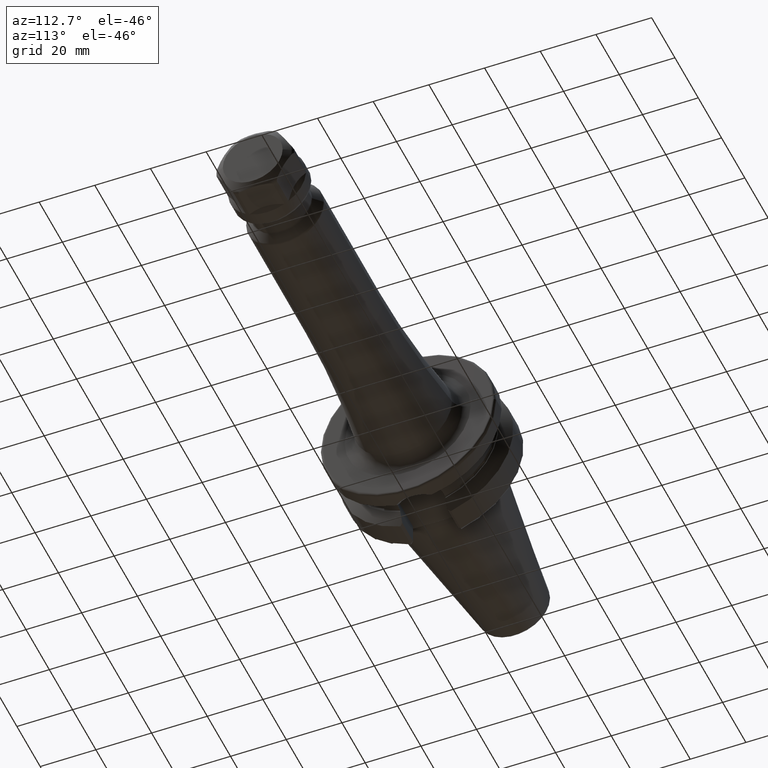
[diagram: clean part render]
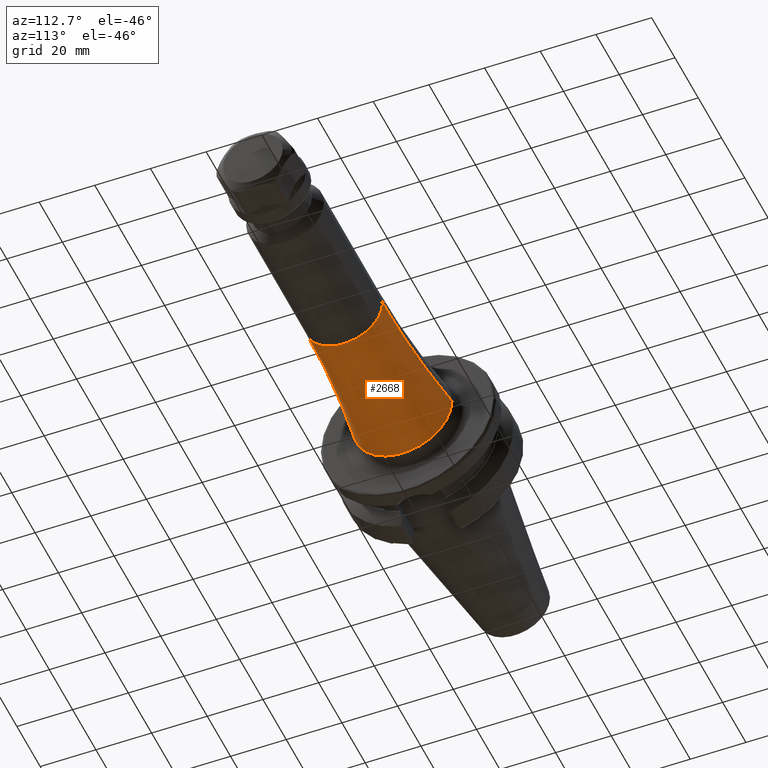
[diagram: same view with one face highlighted and labeled with its STEP entity id]
A machine part, auxiliary view. The second image highlights one B-rep face of the part: STEP entity #2668.
In plain terms, the highlighted toroidal blend (fillet) surface has major radius 364 mm and minor (blend) radius 350 mm.
Its self-contained STEP definition (entity closure, byte-faithful):
#861=CARTESIAN_POINT('',(3.127536231884E1,0.E0,0.E0));
#862=DIRECTION('',(1.E0,0.E0,0.E0));
#863=DIRECTION('',(0.E0,-1.E0,0.E0));
#864=AXIS2_PLACEMENT_3D('',#861,#862,#863);
#866=CARTESIAN_POINT('',(8.2E1,-3.64E2,-8.915428697793E-14));
#867=DIRECTION('',(0.E0,0.E0,1.E0));
#868=DIRECTION('',(0.E0,1.E0,0.E0));
#869=AXIS2_PLACEMENT_3D('',#866,#867,#868);
#871=CARTESIAN_POINT('',(8.2E1,3.64E2,4.457714348896E-14));
#872=DIRECTION('',(0.E0,0.E0,-1.E0));
#873=DIRECTION('',(0.E0,-1.E0,0.E0));
#874=AXIS2_PLACEMENT_3D('',#871,#872,#873);
#876=CARTESIAN_POINT('',(8.2E1,0.E0,0.E0));
#877=DIRECTION('',(1.E0,0.E0,0.E0));
#878=DIRECTION('',(0.E0,-1.E0,0.E0));
#879=AXIS2_PLACEMENT_3D('',#876,#877,#878);
#1501=CARTESIAN_POINT('',(8.2E1,1.4E1,0.E0));
#1502=CARTESIAN_POINT('',(8.2E1,-1.4E1,0.E0));
#1503=VERTEX_POINT('',#1501);
#1504=VERTEX_POINT('',#1502);
#1509=CARTESIAN_POINT('',(3.127536231884E1,-1.769520486699E1,0.E0));
#1510=CARTESIAN_POINT('',(3.127536231884E1,1.769520486699E1,0.E0));
#1511=VERTEX_POINT('',#1509);
#1512=VERTEX_POINT('',#1510);
#2656=CARTESIAN_POINT('',(8.2E1,0.E0,0.E0));
#2657=DIRECTION('',(1.E0,0.E0,0.E0));
#2658=DIRECTION('',(0.E0,-1.E0,0.E0));
#2659=AXIS2_PLACEMENT_3D('',#2656,#2657,#2658);
#2660=TOROIDAL_SURFACE('',#2659,3.64E2,3.5E2);
#2661=ORIENTED_EDGE('',*,*,#2621,.F.);
#2662=ORIENTED_EDGE('',*,*,#2651,.F.);
#2664=ORIENTED_EDGE('',*,*,#2663,.T.);
#2665=ORIENTED_EDGE('',*,*,#2647,.T.);
#2666=EDGE_LOOP('',(#2661,#2662,#2664,#2665));
#2667=FACE_OUTER_BOUND('',#2666,.F.);
#2668=ADVANCED_FACE('',(#2667),#2660,.F.);
#865=CIRCLE('',#864,1.769520486699E1);
#870=CIRCLE('',#869,3.5E2);
#875=CIRCLE('',#874,3.5E2);
#880=CIRCLE('',#879,1.4E1);
#2621=EDGE_CURVE('',#1511,#1512,#865,.T.);
#2647=EDGE_CURVE('',#1503,#1512,#875,.T.);
#2651=EDGE_CURVE('',#1504,#1511,#870,.T.);
#2663=EDGE_CURVE('',#1504,#1503,#880,.T.);